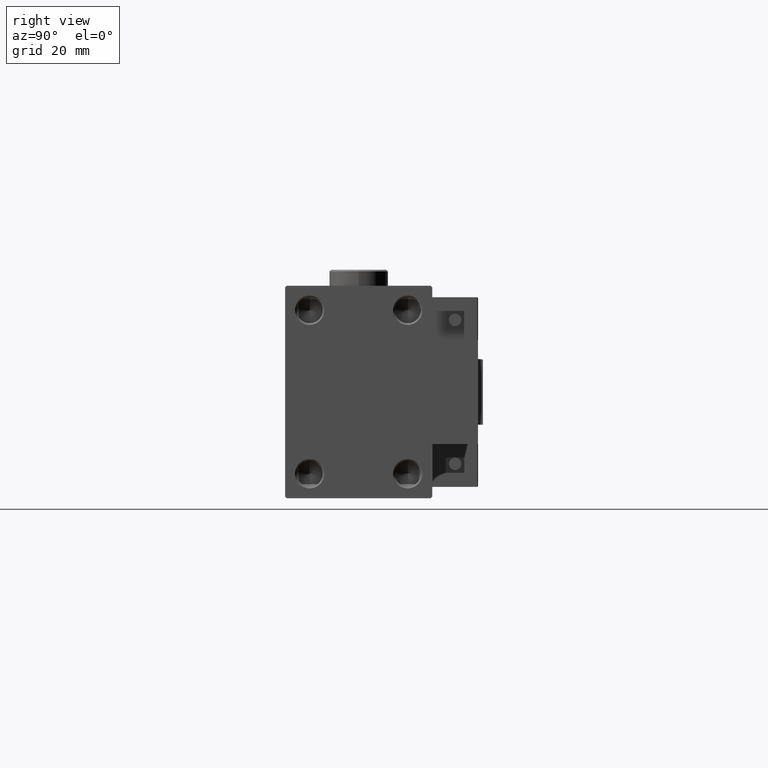
[diagram: clean part render]
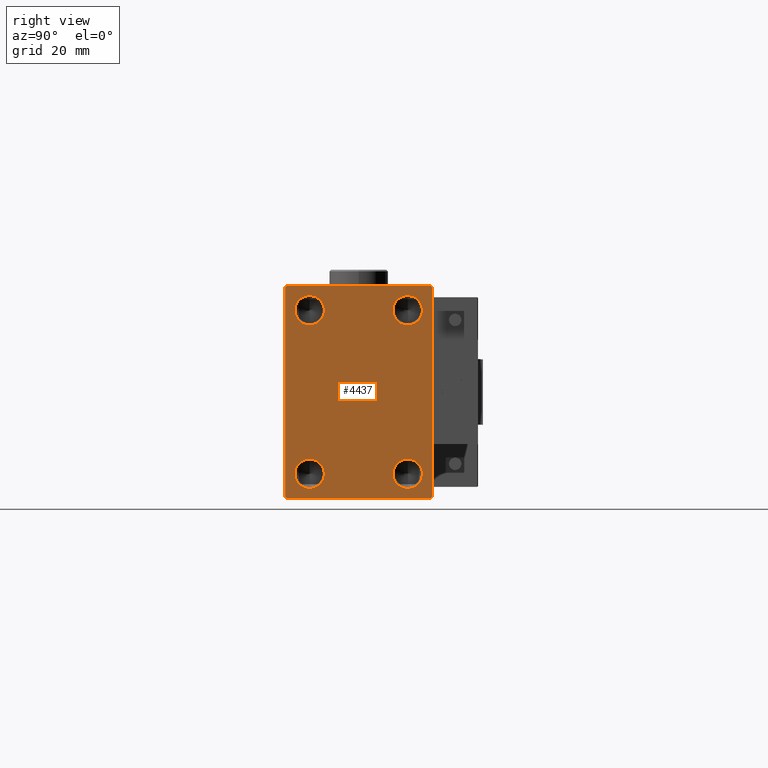
[diagram: same view with one face highlighted and labeled with its STEP entity id]
A machine part, right view. The second image highlights one B-rep face of the part: STEP entity #4437.
In plain terms, the highlighted planar face has unit normal (1, 0, 0).
Its self-contained STEP definition (entity closure, byte-faithful):
#205 = DIRECTION ( 'NONE',  ( 0.000000000000000000, 0.000000000000000000, -1.000000000000000000 ) ) ;
#322 = EDGE_LOOP ( 'NONE', ( #18300, #45283 ) ) ;
#1009 = FACE_BOUND ( 'NONE', #322, .T. ) ;
#1424 = AXIS2_PLACEMENT_3D ( 'NONE', #21898, #9935, #37857 ) ;
#1520 = FACE_BOUND ( 'NONE', #1974, .T. ) ;
#1974 = EDGE_LOOP ( 'NONE', ( #29587, #12827 ) ) ;
#2015 = CARTESIAN_POINT ( 'NONE',  ( 130.0000000000000000, 22.00000000000000711, -32.50000000000000711 ) ) ;
#2044 = PLANE ( 'NONE',  #29667 ) ;
#3226 = CARTESIAN_POINT ( 'NONE',  ( 130.0000000000000000, 15.00000000000000178, -25.00000000000000000 ) ) ;
#3305 = DIRECTION ( 'NONE',  ( -0.000000000000000000, 0.7071067811865426878, -0.7071067811865524577 ) ) ;
#3660 = EDGE_CURVE ( 'NONE', #47573, #5347, #45760, .T. ) ;
#3701 = EDGE_LOOP ( 'NONE', ( #3705, #30030 ) ) ;
#3705 = ORIENTED_EDGE ( 'NONE', *, *, #20496, .F. ) ;
#4052 = ORIENTED_EDGE ( 'NONE', *, *, #3660, .F. ) ;
#4144 = VECTOR ( 'NONE', #42433, 1000.000000000000114 ) ;
#4182 = AXIS2_PLACEMENT_3D ( 'NONE', #15576, #19827, #31793 ) ;
#4235 = LINE ( 'NONE', #36391, #39281 ) ;
#4437 = ADVANCED_FACE ( 'NONE', ( #17468, #1009, #1520, #13222, #33691 ), #2044, .T. ) ;
#5338 = VECTOR ( 'NONE', #15919, 1000.000000000000000 ) ;
#5347 = VERTEX_POINT ( 'NONE', #45482 ) ;
#5412 = CIRCLE ( 'NONE', #50400, 4.500000000000003553 ) ;
#5976 = CARTESIAN_POINT ( 'NONE',  ( 130.0000000000000000, -27.25000000000015632, -27.24999999999977973 ) ) ;
#6013 = LINE ( 'NONE', #22225, #4144 ) ;
#6329 = VERTEX_POINT ( 'NONE', #30849 ) ;
#8073 = ORIENTED_EDGE ( 'NONE', *, *, #26510, .T. ) ;
#8735 = EDGE_CURVE ( 'NONE', #42168, #37996, #29373, .T. ) ;
#8997 = VECTOR ( 'NONE', #24322, 1000.000000000000114 ) ;
#9120 = CARTESIAN_POINT ( 'NONE',  ( 130.0000000000000000, 15.00000000000000178, -25.00000000000000000 ) ) ;
#9651 = DIRECTION ( 'NONE',  ( 1.000000000000000000, -0.000000000000000000, -0.000000000000000000 ) ) ;
#9935 = DIRECTION ( 'NONE',  ( 1.000000000000000000, -0.000000000000000000, -0.000000000000000000 ) ) ;
#9960 = LINE ( 'NONE', #5976, #39252 ) ;
#10040 = CARTESIAN_POINT ( 'NONE',  ( 130.0000000000000000, 15.00000000000000178, -20.50000000000000000 ) ) ;
#10168 = EDGE_CURVE ( 'NONE', #50418, #29944, #25672, .T. ) ;
#10179 = EDGE_CURVE ( 'NONE', #39156, #13497, #9960, .T. ) ;
#10227 = CARTESIAN_POINT ( 'NONE',  ( 130.0000000000000000, -15.00000000000000000, -25.00000000000000000 ) ) ;
#12348 = CARTESIAN_POINT ( 'NONE',  ( 130.0000000000000000, -27.24999999999998934, 27.24999999999998934 ) ) ;
#12635 = ORIENTED_EDGE ( 'NONE', *, *, #38022, .T. ) ;
#12647 = ORIENTED_EDGE ( 'NONE', *, *, #48079, .T. ) ;
#12827 = ORIENTED_EDGE ( 'NONE', *, *, #49403, .F. ) ;
#13222 = FACE_BOUND ( 'NONE', #3701, .T. ) ;
#13497 = VERTEX_POINT ( 'NONE', #44599 ) ;
#13570 = VERTEX_POINT ( 'NONE', #2015 ) ;
#13586 = CARTESIAN_POINT ( 'NONE',  ( 130.0000000000000000, 15.00000000000000178, -29.50000000000000355 ) ) ;
#14088 = VECTOR ( 'NONE', #51311, 1000.000000000000000 ) ;
#14103 = VERTEX_POINT ( 'NONE', #13586 ) ;
#14662 = DIRECTION ( 'NONE',  ( 0.000000000000000000, 0.000000000000000000, -1.000000000000000000 ) ) ;
#15576 = CARTESIAN_POINT ( 'NONE',  ( 130.0000000000000000, 15.00000000000000178, 25.00000000000000000 ) ) ;
#15919 = DIRECTION ( 'NONE',  ( 0.000000000000000000, -1.000000000000000000, -1.541976423090495633E-16 ) ) ;
#16040 = CIRCLE ( 'NONE', #31296, 4.500000000000003553 ) ;
#16715 = EDGE_CURVE ( 'NONE', #5347, #47573, #5412, .T. ) ;
#17468 = FACE_BOUND ( 'NONE', #38760, .T. ) ;
#17609 = CARTESIAN_POINT ( 'NONE',  ( 130.0000000000000000, 22.50000000000000711, -32.00000000000002132 ) ) ;
#17920 = CARTESIAN_POINT ( 'NONE',  ( 130.0000000000000000, 22.50000000000000711, -32.50000000000000711 ) ) ;
#18106 = CARTESIAN_POINT ( 'NONE',  ( 130.0000000000000000, -15.00000000000000000, -25.00000000000000000 ) ) ;
#18300 = ORIENTED_EDGE ( 'NONE', *, *, #24064, .F. ) ;
#18977 = VERTEX_POINT ( 'NONE', #32211 ) ;
#19244 = DIRECTION ( 'NONE',  ( 1.000000000000000000, -0.000000000000000000, -0.000000000000000000 ) ) ;
#19827 = DIRECTION ( 'NONE',  ( 1.000000000000000000, -0.000000000000000000, -0.000000000000000000 ) ) ;
#20496 = EDGE_CURVE ( 'NONE', #27386, #14103, #39510, .T. ) ;
#20579 = LINE ( 'NONE', #12348, #8997 ) ;
#21486 = CARTESIAN_POINT ( 'NONE',  ( 130.0000000000000000, 22.50000000000000000, 32.00000000000000711 ) ) ;
#21718 = CIRCLE ( 'NONE', #46362, 4.500000000000003553 ) ;
#21898 = CARTESIAN_POINT ( 'NONE',  ( 130.0000000000000000, -15.00000000000000000, 25.00000000000000000 ) ) ;
#22225 = CARTESIAN_POINT ( 'NONE',  ( 130.0000000000000000, 27.25000000000001421, -27.25000000000001421 ) ) ;
#22235 = EDGE_CURVE ( 'NONE', #14103, #27386, #21718, .T. ) ;
#22573 = CARTESIAN_POINT ( 'NONE',  ( 130.0000000000000000, -15.00000000000000000, 20.50000000000000355 ) ) ;
#23270 = EDGE_LOOP ( 'NONE', ( #12647, #8073, #41981, #44429, #12635, #30083, #51531, #38175 ) ) ;
#24064 = EDGE_CURVE ( 'NONE', #35030, #45872, #48882, .T. ) ;
#24322 = DIRECTION ( 'NONE',  ( 0.000000000000000000, -0.7071067811865474617, -0.7071067811865474617 ) ) ;
#24428 = DIRECTION ( 'NONE',  ( -0.000000000000000000, -0.7071067811865474617, 0.7071067811865474617 ) ) ;
#24547 = CARTESIAN_POINT ( 'NONE',  ( 130.0000000000000000, 15.00000000000000178, 29.50000000000000355 ) ) ;
#25332 = VECTOR ( 'NONE', #37166, 1000.000000000000000 ) ;
#25672 = CIRCLE ( 'NONE', #49457, 4.500000000000003553 ) ;
#26068 = EDGE_CURVE ( 'NONE', #18977, #39156, #47065, .T. ) ;
#26173 = DIRECTION ( 'NONE',  ( 0.000000000000000000, 0.000000000000000000, -1.000000000000000000 ) ) ;
#26474 = DIRECTION ( 'NONE',  ( 1.000000000000000000, -0.000000000000000000, -0.000000000000000000 ) ) ;
#26510 = EDGE_CURVE ( 'NONE', #6329, #18977, #20579, .T. ) ;
#27224 = ORIENTED_EDGE ( 'NONE', *, *, #16715, .F. ) ;
#27386 = VERTEX_POINT ( 'NONE', #10040 ) ;
#29373 = LINE ( 'NONE', #17920, #33240 ) ;
#29443 = DIRECTION ( 'NONE',  ( 0.000000000000000000, 0.000000000000000000, -1.000000000000000000 ) ) ;
#29464 = LINE ( 'NONE', #45165, #25332 ) ;
#29587 = ORIENTED_EDGE ( 'NONE', *, *, #10168, .F. ) ;
#29632 = DIRECTION ( 'NONE',  ( 0.000000000000000000, -1.067522139062650425E-16, 1.000000000000000000 ) ) ;
#29667 = AXIS2_PLACEMENT_3D ( 'NONE', #34469, #50694, #29443 ) ;
#29824 = DIRECTION ( 'NONE',  ( 0.000000000000000000, 0.000000000000000000, -1.000000000000000000 ) ) ;
#29944 = VERTEX_POINT ( 'NONE', #45633 ) ;
#30030 = ORIENTED_EDGE ( 'NONE', *, *, #22235, .F. ) ;
#30083 = ORIENTED_EDGE ( 'NONE', *, *, #35198, .T. ) ;
#30849 = CARTESIAN_POINT ( 'NONE',  ( 130.0000000000000000, -21.99999999999997868, 32.49999999999998579 ) ) ;
#31134 = VERTEX_POINT ( 'NONE', #33865 ) ;
#31296 = AXIS2_PLACEMENT_3D ( 'NONE', #44596, #48599, #205 ) ;
#31793 = DIRECTION ( 'NONE',  ( 0.000000000000000000, 0.000000000000000000, -1.000000000000000000 ) ) ;
#32211 = CARTESIAN_POINT ( 'NONE',  ( 130.0000000000000000, -22.49999999999999289, 31.99999999999998579 ) ) ;
#33164 = CARTESIAN_POINT ( 'NONE',  ( 130.0000000000000000, -15.00000000000000000, 29.50000000000000000 ) ) ;
#33240 = VECTOR ( 'NONE', #29632, 1000.000000000000000 ) ;
#33332 = DIRECTION ( 'NONE',  ( 0.000000000000000000, 0.000000000000000000, -1.000000000000000000 ) ) ;
#33691 = FACE_OUTER_BOUND ( 'NONE', #23270, .T. ) ;
#33865 = CARTESIAN_POINT ( 'NONE',  ( 130.0000000000000000, 22.00000000000001421, 32.49999999999999289 ) ) ;
#34469 = CARTESIAN_POINT ( 'NONE',  ( 130.0000000000000000, 0.000000000000000000, 0.000000000000000000 ) ) ;
#34866 = DIRECTION ( 'NONE',  ( 1.000000000000000000, -0.000000000000000000, -0.000000000000000000 ) ) ;
#35030 = VERTEX_POINT ( 'NONE', #33164 ) ;
#35198 = EDGE_CURVE ( 'NONE', #13570, #42168, #6013, .T. ) ;
#35226 = CARTESIAN_POINT ( 'NONE',  ( 130.0000000000000000, -22.49999999999999289, -32.00000000000001421 ) ) ;
#35275 = AXIS2_PLACEMENT_3D ( 'NONE', #3226, #34866, #14662 ) ;
#36391 = CARTESIAN_POINT ( 'NONE',  ( 130.0000000000000000, 27.25000000000000355, 27.25000000000000355 ) ) ;
#37166 = DIRECTION ( 'NONE',  ( 0.000000000000000000, 1.000000000000000000, 0.000000000000000000 ) ) ;
#37857 = DIRECTION ( 'NONE',  ( 0.000000000000000000, 0.000000000000000000, -1.000000000000000000 ) ) ;
#37996 = VERTEX_POINT ( 'NONE', #21486 ) ;
#38022 = EDGE_CURVE ( 'NONE', #13497, #13570, #29464, .T. ) ;
#38053 = CARTESIAN_POINT ( 'NONE',  ( 130.0000000000000000, -15.00000000000000000, -20.50000000000000355 ) ) ;
#38175 = ORIENTED_EDGE ( 'NONE', *, *, #48192, .T. ) ;
#38203 = EDGE_CURVE ( 'NONE', #45872, #35030, #16040, .T. ) ;
#38760 = EDGE_LOOP ( 'NONE', ( #4052, #27224 ) ) ;
#39156 = VERTEX_POINT ( 'NONE', #35226 ) ;
#39252 = VECTOR ( 'NONE', #3305, 1000.000000000000000 ) ;
#39281 = VECTOR ( 'NONE', #24428, 1000.000000000000114 ) ;
#39510 = CIRCLE ( 'NONE', #35275, 4.500000000000003553 ) ;
#39564 = LINE ( 'NONE', #43585, #5338 ) ;
#39843 = CARTESIAN_POINT ( 'NONE',  ( 130.0000000000000000, -22.49999999999999289, 32.49999999999998579 ) ) ;
#41981 = ORIENTED_EDGE ( 'NONE', *, *, #26068, .T. ) ;
#42168 = VERTEX_POINT ( 'NONE', #17609 ) ;
#42433 = DIRECTION ( 'NONE',  ( -0.000000000000000000, 0.7071067811865474617, 0.7071067811865474617 ) ) ;
#42565 = DIRECTION ( 'NONE',  ( 1.000000000000000000, -0.000000000000000000, -0.000000000000000000 ) ) ;
#42702 = DIRECTION ( 'NONE',  ( 0.000000000000000000, 0.000000000000000000, -1.000000000000000000 ) ) ;
#43585 = CARTESIAN_POINT ( 'NONE',  ( 130.0000000000000000, 22.50000000000000000, 32.49999999999999289 ) ) ;
#44429 = ORIENTED_EDGE ( 'NONE', *, *, #10179, .T. ) ;
#44444 = AXIS2_PLACEMENT_3D ( 'NONE', #18106, #42565, #29824 ) ;
#44596 = CARTESIAN_POINT ( 'NONE',  ( 130.0000000000000000, -15.00000000000000000, 25.00000000000000000 ) ) ;
#44599 = CARTESIAN_POINT ( 'NONE',  ( 130.0000000000000000, -22.00000000000000711, -32.50000000000000711 ) ) ;
#45165 = CARTESIAN_POINT ( 'NONE',  ( 130.0000000000000000, -22.49999999999999289, -32.50000000000000711 ) ) ;
#45283 = ORIENTED_EDGE ( 'NONE', *, *, #38203, .F. ) ;
#45482 = CARTESIAN_POINT ( 'NONE',  ( 130.0000000000000000, 15.00000000000000178, 20.50000000000000000 ) ) ;
#45633 = CARTESIAN_POINT ( 'NONE',  ( 130.0000000000000000, -15.00000000000000000, -29.50000000000000000 ) ) ;
#45760 = CIRCLE ( 'NONE', #4182, 4.500000000000003553 ) ;
#45872 = VERTEX_POINT ( 'NONE', #22573 ) ;
#46362 = AXIS2_PLACEMENT_3D ( 'NONE', #9120, #9651, #33332 ) ;
#47065 = LINE ( 'NONE', #39843, #14088 ) ;
#47573 = VERTEX_POINT ( 'NONE', #24547 ) ;
#47853 = CIRCLE ( 'NONE', #44444, 4.500000000000003553 ) ;
#48079 = EDGE_CURVE ( 'NONE', #31134, #6329, #39564, .T. ) ;
#48192 = EDGE_CURVE ( 'NONE', #37996, #31134, #4235, .T. ) ;
#48599 = DIRECTION ( 'NONE',  ( 1.000000000000000000, -0.000000000000000000, -0.000000000000000000 ) ) ;
#48882 = CIRCLE ( 'NONE', #1424, 4.500000000000003553 ) ;
#49403 = EDGE_CURVE ( 'NONE', #29944, #50418, #47853, .T. ) ;
#49457 = AXIS2_PLACEMENT_3D ( 'NONE', #10227, #19244, #26173 ) ;
#50400 = AXIS2_PLACEMENT_3D ( 'NONE', #51469, #26474, #42702 ) ;
#50418 = VERTEX_POINT ( 'NONE', #38053 ) ;
#50694 = DIRECTION ( 'NONE',  ( 1.000000000000000000, 0.000000000000000000, 0.000000000000000000 ) ) ;
#51311 = DIRECTION ( 'NONE',  ( 0.000000000000000000, 0.000000000000000000, -1.000000000000000000 ) ) ;
#51469 = CARTESIAN_POINT ( 'NONE',  ( 130.0000000000000000, 15.00000000000000178, 25.00000000000000000 ) ) ;
#51531 = ORIENTED_EDGE ( 'NONE', *, *, #8735, .T. ) ;